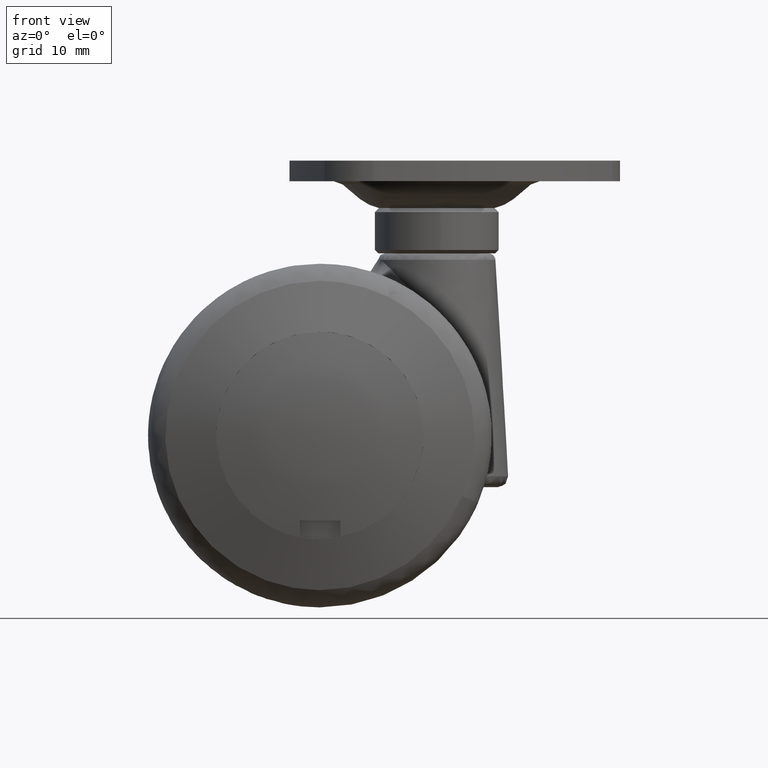
[diagram: clean part render]
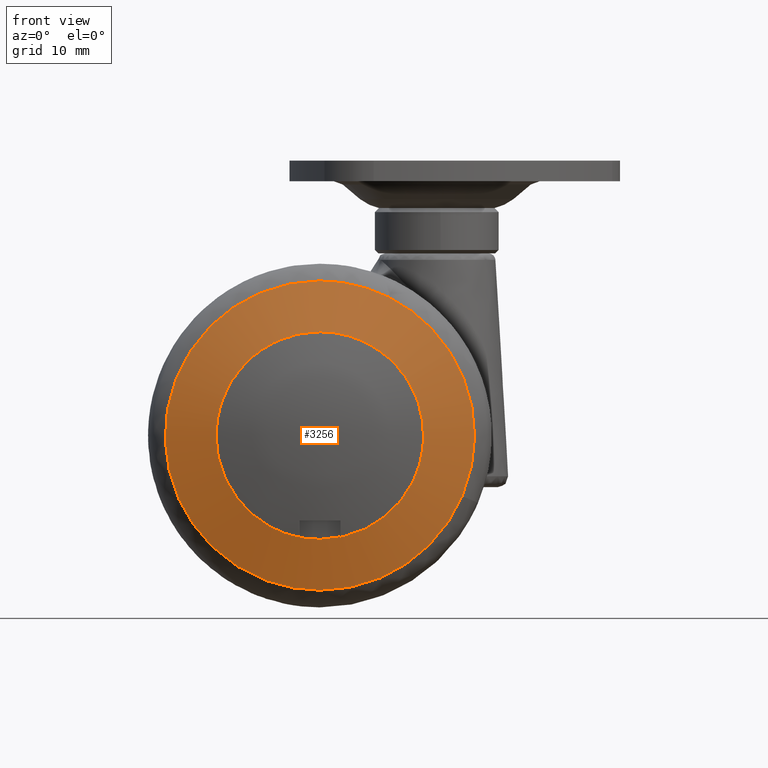
[diagram: same view with one face highlighted and labeled with its STEP entity id]
A machine part, front view. The second image highlights one B-rep face of the part: STEP entity #3256.
In plain terms, the highlighted face is a freeform B-spline surface patch.
Its self-contained STEP definition (entity closure, byte-faithful):
#2311=CARTESIAN_POINT('',(14.994446374600731,-22.500000000000000,-1.782306908599554));
#2312=VERTEX_POINT('',#2311);
#2318=CARTESIAN_POINT('',(0.0,-22.500000000000000,15.100001765886200));
#2319=VERTEX_POINT('',#2318);
#2320=CARTESIAN_POINT('',(14.994446374600738,-22.500000000000000,-1.782306908599555));
#2321=CARTESIAN_POINT('',(15.100001765886201,-22.500000000000000,-0.894279161936176));
#2322=CARTESIAN_POINT('',(15.100001765886200,-22.500000000000000,0.0));
#2323=CARTESIAN_POINT('',(15.100001765886196,-22.500000000000004,15.100001765886196));
#2324=CARTESIAN_POINT('',(0.0,-22.500000000000000,15.100001765886200));
#2332=(BOUNDED_CURVE()B_SPLINE_CURVE(2,(#2320,#2321,#2322,#2323,#2324),.UNSPECIFIED.,.F.,.U.)B_SPLINE_CURVE_WITH_KNOTS((3,2,3),(0.229562588379487,0.250000000000000,0.500000000000000),.UNSPECIFIED.)CURVE()GEOMETRIC_REPRESENTATION_ITEM()RATIONAL_B_SPLINE_CURVE((0.956026979325841,0.976056082905009,1.0,0.707106781186547,1.0))REPRESENTATION_ITEM(''));
#2333=EDGE_CURVE('',#2312,#2319,#2332,.T.);
#2335=CARTESIAN_POINT('',(-15.071838210919481,-22.500000000000000,0.921809601078580));
#2336=VERTEX_POINT('',#2335);
#2337=CARTESIAN_POINT('',(0.0,-22.500000000000000,15.100001765886200));
#2338=CARTESIAN_POINT('',(-14.204685391597728,-22.500000000000000,15.100001765886196));
#2339=CARTESIAN_POINT('',(-15.071838210919484,-22.500000000000000,0.921809601078580));
#2347=(BOUNDED_CURVE()B_SPLINE_CURVE(2,(#2337,#2338,#2339),.UNSPECIFIED.,.F.,.U.)B_SPLINE_CURVE_WITH_KNOTS((3,3),(0.500000000000000,0.739333230438314),.UNSPECIFIED.)CURVE()GEOMETRIC_REPRESENTATION_ITEM()RATIONAL_B_SPLINE_CURVE((1.0,0.719603679071602,0.976072616469698))REPRESENTATION_ITEM(''));
#2348=EDGE_CURVE('',#2319,#2336,#2347,.T.);
#2422=CARTESIAN_POINT('',(0.0,-22.500000000000000,-15.100001765886200));
#2423=VERTEX_POINT('',#2422);
#2424=CARTESIAN_POINT('',(-15.071838210919484,-22.500000000000000,0.921809601078580));
#2425=CARTESIAN_POINT('',(-15.100001765886200,-22.500000000000004,0.461335033543612));
#2426=CARTESIAN_POINT('',(-15.100001765886200,-22.500000000000000,0.0));
#2427=CARTESIAN_POINT('',(-15.100001765886196,-22.500000000000004,-15.100001765886196));
#2428=CARTESIAN_POINT('',(0.0,-22.500000000000000,-15.100001765886200));
#2436=(BOUNDED_CURVE()B_SPLINE_CURVE(2,(#2424,#2425,#2426,#2427,#2428),.UNSPECIFIED.,.F.,.U.)B_SPLINE_CURVE_WITH_KNOTS((3,2,3),(0.739333230438314,0.750000000000000,1.0),.UNSPECIFIED.)CURVE()GEOMETRIC_REPRESENTATION_ITEM()RATIONAL_B_SPLINE_CURVE((0.976072616469698,0.987503102114946,1.0,0.707106781186547,1.0))REPRESENTATION_ITEM(''));
#2437=EDGE_CURVE('',#2336,#2423,#2436,.T.);
#2439=CARTESIAN_POINT('',(0.0,-22.500000000000000,-15.100001765886200));
#2440=CARTESIAN_POINT('',(13.411446089595476,-22.500000000000000,-15.100001765886207));
#2441=CARTESIAN_POINT('',(14.994446374600738,-22.500000000000000,-1.782306908599555));
#2449=(BOUNDED_CURVE()B_SPLINE_CURVE(2,(#2439,#2440,#2441),.UNSPECIFIED.,.F.,.U.)B_SPLINE_CURVE_WITH_KNOTS((3,3),(0.0,0.229562588379487),.UNSPECIFIED.)CURVE()GEOMETRIC_REPRESENTATION_ITEM()RATIONAL_B_SPLINE_CURVE((1.0,0.731050698281538,0.956026979325841))REPRESENTATION_ITEM(''));
#2450=EDGE_CURVE('',#2423,#2312,#2449,.T.);
#2891=CARTESIAN_POINT('',(9.975672701015878,-20.052650238869809,20.167695819865440));
#2892=VERTEX_POINT('',#2891);
#2893=CARTESIAN_POINT('',(0.0,-20.052650239280950,22.500000010548298));
#2894=VERTEX_POINT('',#2893);
#2895=CARTESIAN_POINT('',(9.975672701015878,-20.052650238869816,20.167695819865440));
#2896=CARTESIAN_POINT('',(5.260481765090058,-20.052650239280950,22.500000010548305));
#2897=CARTESIAN_POINT('',(0.0,-20.052650239280950,22.500000010548298));
#2905=(BOUNDED_CURVE()B_SPLINE_CURVE(2,(#2895,#2896,#2897),.UNSPECIFIED.,.F.,.U.)B_SPLINE_CURVE_WITH_KNOTS((3,3),(0.424637790835571,0.500000000000000),.UNSPECIFIED.)CURVE()GEOMETRIC_REPRESENTATION_ITEM()RATIONAL_B_SPLINE_CURVE((0.876646594193094,0.911707679923751,1.0))REPRESENTATION_ITEM(''));
#2906=EDGE_CURVE('',#2892,#2894,#2905,.T.);
#2926=CARTESIAN_POINT('',(20.705216576329271,-20.052650238875319,-8.805907508434187));
#2927=VERTEX_POINT('',#2926);
#2941=CARTESIAN_POINT('',(0.0,-20.052650239280950,-22.500000010548298));
#2942=VERTEX_POINT('',#2941);
#2943=CARTESIAN_POINT('',(0.0,-20.052650239280950,-22.500000010548298));
#2944=CARTESIAN_POINT('',(14.881132990204604,-20.052650239280947,-22.500000010548302));
#2945=CARTESIAN_POINT('',(20.705216576329278,-20.052650238875323,-8.805907508434187));
#2953=(BOUNDED_CURVE()B_SPLINE_CURVE(2,(#2943,#2944,#2945),.UNSPECIFIED.,.F.,.U.)B_SPLINE_CURVE_WITH_KNOTS((3,3),(0.0,0.183550134661854),.UNSPECIFIED.)CURVE()GEOMETRIC_REPRESENTATION_ITEM()RATIONAL_B_SPLINE_CURVE((1.0,0.784957640980987,0.885683713609516))REPRESENTATION_ITEM(''));
#2954=EDGE_CURVE('',#2942,#2927,#2953,.T.);
#2956=CARTESIAN_POINT('',(0.0,-20.052650239280950,22.500000010548298));
#2957=CARTESIAN_POINT('',(-22.500000010548291,-20.052650239280958,22.500000010548291));
#2958=CARTESIAN_POINT('',(-22.500000010548298,-20.052650239280950,0.0));
#2959=CARTESIAN_POINT('',(-22.500000010548291,-20.052650239280958,-22.500000010548291));
#2960=CARTESIAN_POINT('',(0.0,-20.052650239280950,-22.500000010548298));
#2968=(BOUNDED_CURVE()B_SPLINE_CURVE(2,(#2956,#2957,#2958,#2959,#2960),.UNSPECIFIED.,.F.,.U.)B_SPLINE_CURVE_WITH_KNOTS((3,2,3),(0.500000000000000,0.750000000000000,1.0),.UNSPECIFIED.)CURVE()GEOMETRIC_REPRESENTATION_ITEM()RATIONAL_B_SPLINE_CURVE((1.0,0.707106781186548,1.0,0.707106781186548,1.0))REPRESENTATION_ITEM(''));
#2969=EDGE_CURVE('',#2894,#2942,#2968,.T.);
#2991=CARTESIAN_POINT('',(20.705216576329278,-20.052650238875316,-8.805907508434187));
#2992=CARTESIAN_POINT('',(22.500000010548298,-20.052650239280950,-4.585856400731532));
#2993=CARTESIAN_POINT('',(22.500000010548298,-20.052650239280950,0.0));
#2994=CARTESIAN_POINT('',(22.500000010548302,-20.052650239280950,13.972709978147995));
#2995=CARTESIAN_POINT('',(9.975672701015878,-20.052650238869809,20.167695819865440));
#3003=(BOUNDED_CURVE()B_SPLINE_CURVE(2,(#2991,#2992,#2993,#2994,#2995),.UNSPECIFIED.,.F.,.U.)B_SPLINE_CURVE_WITH_KNOTS((3,2,3),(0.183550134661854,0.250000000000000,0.424637790835571),.UNSPECIFIED.)CURVE()GEOMETRIC_REPRESENTATION_ITEM()RATIONAL_B_SPLINE_CURVE((0.885683713609515,0.922149140205560,1.0,0.795399101262797,0.876646594193094))REPRESENTATION_ITEM(''));
#3004=EDGE_CURVE('',#2927,#2892,#3003,.T.);
#3220=CARTESIAN_POINT('',(-23.529031152138892,-14.358802987606852,-23.529032246446722));
#3221=CARTESIAN_POINT('',(-12.279879532432092,-19.174364121991974,-24.559760207110013));
#3222=CARTESIAN_POINT('',(12.279867601254047,-19.174364121991953,-24.559760207110013));
#3223=CARTESIAN_POINT('',(23.529010210098853,-14.358811952515833,-23.529034165305625));
#3224=CARTESIAN_POINT('',(-24.559759164940136,-19.174364589546670,-12.279880153592970));
#3225=CARTESIAN_POINT('',(-12.842464883672800,-24.431162000000089,-12.842465480960909));
#3226=CARTESIAN_POINT('',(12.842452405884670,-24.431162000000079,-12.842465480960909));
#3227=CARTESIAN_POINT('',(24.559737393240539,-19.174374357104799,-12.279881198922373));
#3228=CARTESIAN_POINT('',(-24.559759164940136,-19.174364589546670,12.279879656306047));
#3229=CARTESIAN_POINT('',(-12.842464883672800,-24.431162000000089,12.842464960891490));
#3230=CARTESIAN_POINT('',(12.842452405884670,-24.431162000000079,12.842464960891490));
#3231=CARTESIAN_POINT('',(24.559737393240539,-19.174374357104799,12.279880701635408));
#3232=CARTESIAN_POINT('',(-23.529031232116207,-14.358803361260954,23.529031373590627));
#3233=CARTESIAN_POINT('',(-12.279879576001029,-19.174364529100203,24.559759299674045));
#3234=CARTESIAN_POINT('',(12.279867644822941,-19.174364529100181,24.559759299674045));
#3235=CARTESIAN_POINT('',(23.529010290076094,-14.358812326170000,23.529033292449469));
#3243=(BOUNDED_SURFACE()B_SPLINE_SURFACE(2,2,((#3220,#3224,#3228,#3232),(#3221,#3225,#3229,#3233),(#3222,#3226,#3230,#3234),(#3223,#3227,#3231,#3235)),.UNSPECIFIED.,.F.,.F.,.U.)B_SPLINE_SURFACE_WITH_KNOTS((3,1,3),(3,1,3),(9.826574003028870,34.408243677051843,58.989889467430118),(9.826572859764099,34.408243677051850,58.989913498878479),.UNSPECIFIED.)GEOMETRIC_REPRESENTATION_ITEM()RATIONAL_B_SPLINE_SURFACE(((1.091627173310567,1.045813584524547,1.045813584524547,1.091627169600027),(1.045813588786020,1.0,1.0,1.045813585075480),(1.045813588786020,1.0,1.0,1.045813585075480),(1.091627084285301,1.045813495499281,1.045813495499281,1.091627080574761)))REPRESENTATION_ITEM('')SURFACE());
#3244=ORIENTED_EDGE('',*,*,#2954,.T.);
#3245=ORIENTED_EDGE('',*,*,#3004,.T.);
#3246=ORIENTED_EDGE('',*,*,#2906,.T.);
#3247=ORIENTED_EDGE('',*,*,#2969,.T.);
#3248=EDGE_LOOP('',(#3244,#3245,#3246,#3247));
#3249=FACE_OUTER_BOUND('',#3248,.T.);
#3250=ORIENTED_EDGE('',*,*,#2348,.F.);
#3251=ORIENTED_EDGE('',*,*,#2333,.F.);
#3252=ORIENTED_EDGE('',*,*,#2450,.F.);
#3253=ORIENTED_EDGE('',*,*,#2437,.F.);
#3254=EDGE_LOOP('',(#3250,#3251,#3252,#3253));
#3255=FACE_BOUND('',#3254,.T.);
#3256=ADVANCED_FACE('',(#3249,#3255),#3243,.T.);